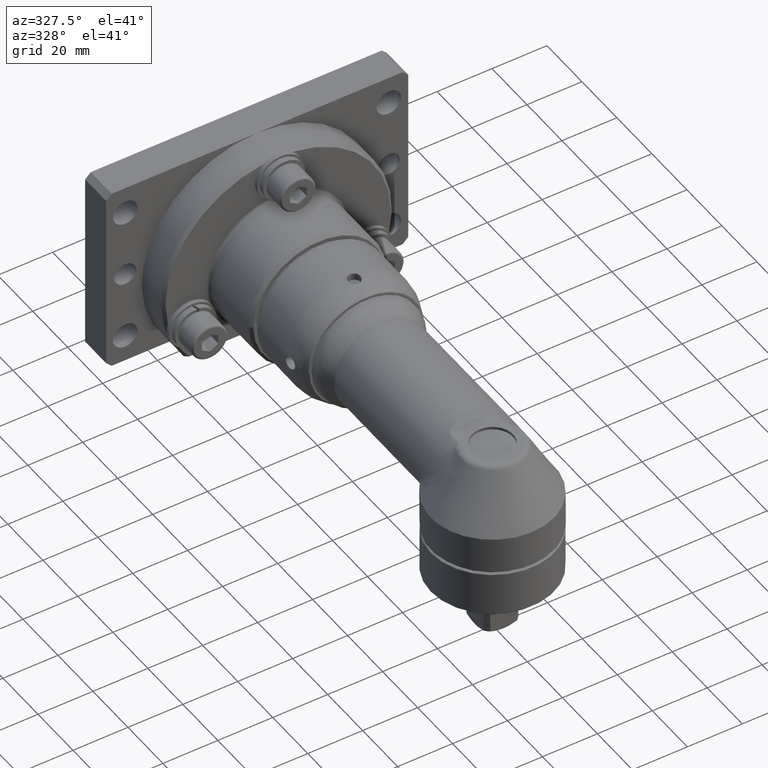
[diagram: clean part render]
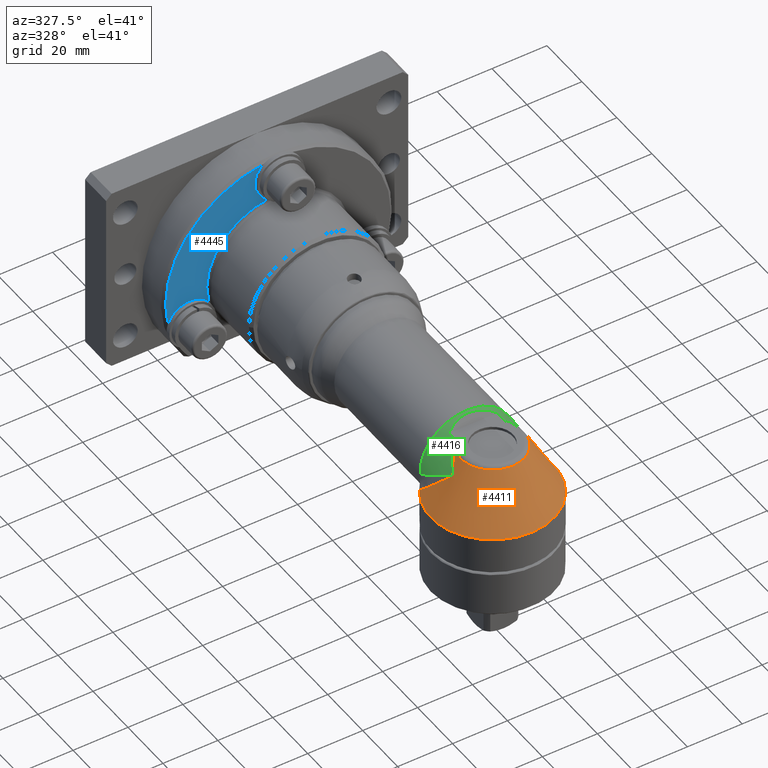
[diagram: same view with three faces highlighted in distinct colors, each labeled with its STEP entity id]
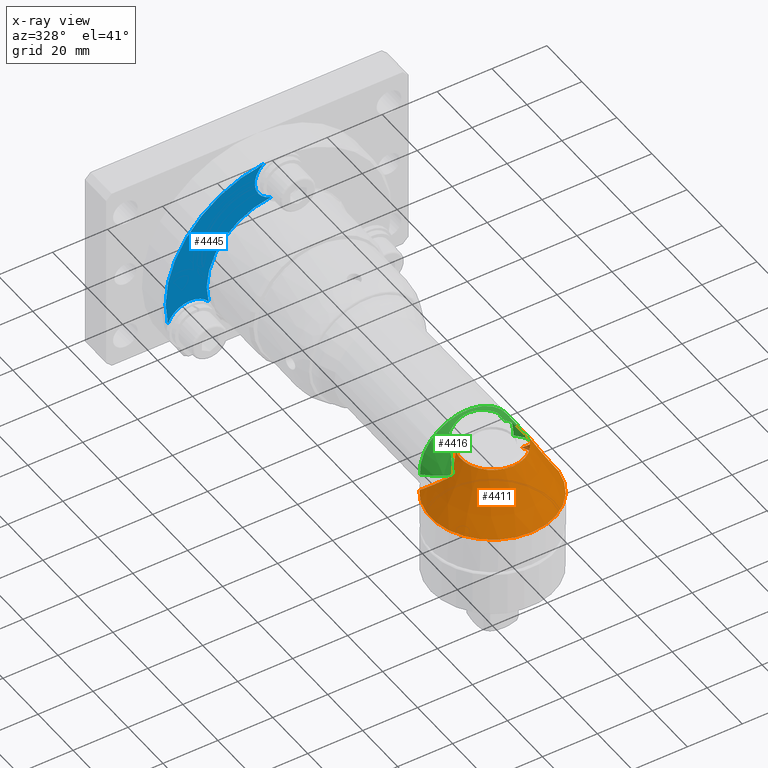
[diagram: x-ray of the same camera — body ghosted, the three highlighted faces saturated]
A machine part, auxiliary view with three faces highlighted in distinct colors.
The next image is the same camera in x-ray (body ghosted, the three faces saturated) — at least one of them is partly hidden behind the body in this view.
Their STEP definitions:

[orange] entity #4411 — the highlighted conical surface has half-angle 30 deg.
#116=B_SPLINE_CURVE_WITH_KNOTS('',3,(#7570,#7571,#7572,#7573),
 .UNSPECIFIED.,.F.,.F.,(4,4),(-0.115384933978931,-8.54182486261032E-13),
 .UNSPECIFIED.);
#117=B_SPLINE_CURVE_WITH_KNOTS('',3,(#7575,#7576,#7577,#7578),
 .UNSPECIFIED.,.F.,.F.,(4,4),(-3.12409619109483,-3.00871125784011),
 .UNSPECIFIED.);
#118=B_SPLINE_CURVE_WITH_KNOTS('',3,(#7579,#7580,#7581,#7582,#7583,#7584,
#7585,#7586,#7587,#7588,#7589,#7590,#7591,#7592,#7593,#7594,#7595),
 .UNSPECIFIED.,.F.,.F.,(4,1,1,1,1,1,1,1,1,1,1,1,1,1,4),(-2.8731504176591,
-2.66792538782631,-2.46270035799351,-2.25747532816072,-2.15486281324432,
-2.10355655578613,-2.05225029832793,-2.00094404086973,-1.94963778341153,
-1.84702526849513,-1.64180023866234,-1.23135017899676,-0.820900119331171,
-0.410450059665585,0.),.UNSPECIFIED.);
#119=B_SPLINE_CURVE_WITH_KNOTS('',3,(#7596,#7597,#7598,#7599,#7600,#7601,
#7602,#7603,#7604,#7605,#7606,#7607,#7608,#7609,#7610,#7611,#7612,#7613),
 .UNSPECIFIED.,.F.,.F.,(4,1,1,1,1,1,1,1,1,1,1,1,1,1,1,4),(-2.87314976603078,
-2.46269979945629,-2.05224983288179,-1.64179986630729,-1.2313498997328,
-1.02612491644555,-0.923512424801928,-0.872206178980116,-0.820899933158304,
-0.769593687336492,-0.71828744151468,-0.615674949871057,-0.564368704049245,
-0.513062458227433,-0.410449966583809,-9.31366520211277E-12),
 .UNSPECIFIED.);
#160=CONICAL_SURFACE('',#4770,16.75,0.523598775598299);
#795=FACE_OUTER_BOUND('',#1058,.T.);
#1058=EDGE_LOOP('',(#3162,#3163,#3164,#3165,#3166,#3167));
#1370=CIRCLE('',#4744,22.5);
#1384=CIRCLE('',#4769,11.5773502691896);
#1775=VERTEX_POINT('',#7334);
#1776=VERTEX_POINT('',#7345);
#1800=VERTEX_POINT('',#7540);
#1802=VERTEX_POINT('',#7548);
#1804=VERTEX_POINT('',#7569);
#1805=VERTEX_POINT('',#7574);
#2280=EDGE_CURVE('',#1776,#1775,#1370,.T.);
#2315=EDGE_CURVE('',#1800,#1802,#1384,.T.);
#2319=EDGE_CURVE('',#1776,#1804,#116,.T.);
#2320=EDGE_CURVE('',#1805,#1775,#117,.T.);
#2321=EDGE_CURVE('',#1802,#1805,#118,.T.);
#2322=EDGE_CURVE('',#1804,#1800,#119,.T.);
#3162=ORIENTED_EDGE('',*,*,#2319,.F.);
#3163=ORIENTED_EDGE('',*,*,#2280,.T.);
#3164=ORIENTED_EDGE('',*,*,#2320,.F.);
#3165=ORIENTED_EDGE('',*,*,#2321,.F.);
#3166=ORIENTED_EDGE('',*,*,#2315,.F.);
#3167=ORIENTED_EDGE('',*,*,#2322,.F.);
#4411=ADVANCED_FACE('',(#795),#160,.T.);
#4744=AXIS2_PLACEMENT_3D('',#7346,#5519,#5520);
#4769=AXIS2_PLACEMENT_3D('',#7549,#5578,#5579);
#4770=AXIS2_PLACEMENT_3D('',#7568,#5580,#5581);
#5519=DIRECTION('center_axis',(-2.51278438236415E-15,2.47358770109276E-30,
1.));
#5520=DIRECTION('ref_axis',(1.,-6.70462140602243E-16,2.51278438236415E-15));
#5578=DIRECTION('center_axis',(-2.58211195176569E-15,2.4561895603358E-30,
1.));
#5579=DIRECTION('ref_axis',(-3.37395233214696E-16,-1.,1.58499729618336E-30));
#5580=DIRECTION('center_axis',(2.51278438236415E-15,-2.47358770109276E-30,
-1.));
#5581=DIRECTION('ref_axis',(-2.07011132455914E-13,-1.,1.22464679914217E-16));
#7334=CARTESIAN_POINT('',(18.5813121479336,12.6879800938088,-5.41858428702895));
#7345=CARTESIAN_POINT('',(-18.5813121479307,12.6879800938191,-5.41858428704108));
#7346=CARTESIAN_POINT('Origin',(1.36157339710031E-14,-1.34033434497618E-29,
-5.41858428704207));
#7540=CARTESIAN_POINT('',(-10.9707652513866,3.69829001756431,13.5000000000686));
#7548=CARTESIAN_POINT('',(10.9707652514686,3.69829001736887,13.5000000000153));
#7549=CARTESIAN_POINT('Origin',(-3.33461533261041E-14,3.3006955560354E-29,
13.5));
#7568=CARTESIAN_POINT('Origin',(-1.14098197866385E-14,1.12318391080417E-29,
4.54070785647897));
#7569=CARTESIAN_POINT('',(-18.5674964772004,11.9305014562416,-4.67395509964043));
#7570=CARTESIAN_POINT('Ctrl Pts',(-18.5813122436066,12.687980733859,-5.41858363473499));
#7571=CARTESIAN_POINT('Ctrl Pts',(-18.5804312309489,12.4351546252485,-5.17038253345136));
#7572=CARTESIAN_POINT('Ctrl Pts',(-18.5758101821906,12.1826387072991,-4.92214580809359));
#7573=CARTESIAN_POINT('Ctrl Pts',(-18.5674964771758,11.9305014562555,-4.67395509961759));
#7574=CARTESIAN_POINT('',(18.5674964772005,11.9305014562415,-4.67395509964034));
#7575=CARTESIAN_POINT('Ctrl Pts',(18.5674964771759,11.9305014562554,-4.6739550996175));
#7576=CARTESIAN_POINT('Ctrl Pts',(18.5758101821385,12.1826387057184,-4.9221458065376));
#7577=CARTESIAN_POINT('Ctrl Pts',(18.5804312274632,12.4351546085357,-5.17038255148408));
#7578=CARTESIAN_POINT('Ctrl Pts',(18.5813122391549,12.6879807115766,-5.41858365742586));
#7579=CARTESIAN_POINT('Ctrl Pts',(10.9707652514496,3.69829001735004,13.5000000000493));
#7580=CARTESIAN_POINT('Ctrl Pts',(11.2914308359435,3.41811090370683,13.128711241278));
#7581=CARTESIAN_POINT('Ctrl Pts',(11.926250938439,2.82237504031619,12.3536112325936));
#7582=CARTESIAN_POINT('Ctrl Pts',(12.7815863032603,1.89750893392612,11.1956469392682));
#7583=CARTESIAN_POINT('Ctrl Pts',(13.4564848404127,1.0813928333146,10.185188073272));
#7584=CARTESIAN_POINT('Ctrl Pts',(13.9191606722085,0.473676113449466,9.432653616824));
#7585=CARTESIAN_POINT('Ctrl Pts',(14.1831803729024,0.162854865175761,8.98641790901122));
#7586=CARTESIAN_POINT('Ctrl Pts',(14.394129263659,-0.0760370798651298,8.62106157780882));
#7587=CARTESIAN_POINT('Ctrl Pts',(14.6637917616972,-0.0742684170117445,
8.15405937002691));
#7588=CARTESIAN_POINT('Ctrl Pts',(14.9445086729663,0.240206129596575,7.66759963040922));
#7589=CARTESIAN_POINT('Ctrl Pts',(15.3700517234555,0.837015947211493,6.90267333009701));
#7590=CARTESIAN_POINT('Ctrl Pts',(16.137694314767,2.1646127408732,5.40093289129336));
#7591=CARTESIAN_POINT('Ctrl Pts',(17.05240856284,4.1588769046288,3.22624109213719));
#7592=CARTESIAN_POINT('Ctrl Pts',(17.8506044106422,6.6454824372168,0.630408016258706));
#7593=CARTESIAN_POINT('Ctrl Pts',(18.3768856545149,9.22701235793805,-1.99675788651507));
#7594=CARTESIAN_POINT('Ctrl Pts',(18.5379227659574,11.033592768366,-3.79108514781807));
#7595=CARTESIAN_POINT('Ctrl Pts',(18.5674964772005,11.9305014562415,-4.67395509964033));
#7596=CARTESIAN_POINT('Ctrl Pts',(-18.5674964772005,11.9305014562416,-4.67395509964044));
#7597=CARTESIAN_POINT('Ctrl Pts',(-18.5379227726648,11.0335929717871,-3.79108534805527));
#7598=CARTESIAN_POINT('Ctrl Pts',(-18.3768861997109,9.22701875557001,-1.99675929027534));
#7599=CARTESIAN_POINT('Ctrl Pts',(-17.8506033273756,6.64548261387375,0.630410843603359));
#7600=CARTESIAN_POINT('Ctrl Pts',(-17.0524076835978,4.15887687906328,3.22624915580338));
#7601=CARTESIAN_POINT('Ctrl Pts',(-16.1376893337,2.16449981033312,5.40093539891972));
#7602=CARTESIAN_POINT('Ctrl Pts',(-15.3700378226715,0.836923865870236,6.90268994573177));
#7603=CARTESIAN_POINT('Ctrl Pts',(-14.944485706646,0.239970615184851,7.66762387145125));
#7604=CARTESIAN_POINT('Ctrl Pts',(-14.6637715613757,-0.0744650876481361,
8.15407932614946));
#7605=CARTESIAN_POINT('Ctrl Pts',(-14.3940928464549,-0.0764265140945156,
8.621101273422));
#7606=CARTESIAN_POINT('Ctrl Pts',(-14.1831702212355,0.16278253692162,8.98642233890692));
#7607=CARTESIAN_POINT('Ctrl Pts',(-13.9190518629328,0.472450092648189,9.4327834796517));
#7608=CARTESIAN_POINT('Ctrl Pts',(-13.6549445323911,0.822835180525051,9.86243037692808));
#7609=CARTESIAN_POINT('Ctrl Pts',(-13.3875126591745,1.15638205480958,10.2798508604894));
#7610=CARTESIAN_POINT('Ctrl Pts',(-13.1176677149928,1.48914483036276,10.6898761071216));
#7611=CARTESIAN_POINT('Ctrl Pts',(-12.3702916158766,2.37109979565741,11.7818549883917));
#7612=CARTESIAN_POINT('Ctrl Pts',(-11.6120962748407,3.13793191729018,12.7574226511005));
#7613=CARTESIAN_POINT('Ctrl Pts',(-10.9707652513011,3.69829001747984,13.5000000002213));

[blue] entity #4445 — the highlighted planar face has unit normal (0, -1, 0).
#829=FACE_OUTER_BOUND('',#1100,.T.);
#1100=EDGE_LOOP('',(#3346,#3347,#3348,#3349));
#1429=CIRCLE('',#4834,41.);
#1450=CIRCLE('',#4860,8.5);
#1451=CIRCLE('',#4861,26.);
#1452=CIRCLE('',#4862,8.5);
#1853=VERTEX_POINT('',#8231);
#1854=VERTEX_POINT('',#8233);
#1875=VERTEX_POINT('',#8286);
#1876=VERTEX_POINT('',#8288);
#2391=EDGE_CURVE('',#1853,#1854,#1429,.T.);
#2416=EDGE_CURVE('',#1853,#1875,#1450,.T.);
#2417=EDGE_CURVE('',#1876,#1875,#1451,.T.);
#2418=EDGE_CURVE('',#1876,#1854,#1452,.T.);
#3346=ORIENTED_EDGE('',*,*,#2416,.T.);
#3347=ORIENTED_EDGE('',*,*,#2417,.F.);
#3348=ORIENTED_EDGE('',*,*,#2418,.T.);
#3349=ORIENTED_EDGE('',*,*,#2391,.F.);
#4263=PLANE('',#4859);
#4445=ADVANCED_FACE('',(#829),#4263,.T.);
#4834=AXIS2_PLACEMENT_3D('',#8234,#5720,#5721);
#4859=AXIS2_PLACEMENT_3D('',#8285,#5773,#5774);
#4860=AXIS2_PLACEMENT_3D('',#8287,#5775,#5776);
#4861=AXIS2_PLACEMENT_3D('',#8289,#5777,#5778);
#4862=AXIS2_PLACEMENT_3D('',#8290,#5779,#5780);
#5720=DIRECTION('center_axis',(-3.53651794369473E-16,1.,-1.06971554646458E-15));
#5721=DIRECTION('ref_axis',(1.,3.53651794369473E-16,1.73472347597681E-16));
#5773=DIRECTION('center_axis',(3.53651794369473E-16,-1.,1.06971554646458E-15));
#5774=DIRECTION('ref_axis',(-1.73472347597682E-16,1.06971554646458E-15,
1.));
#5775=DIRECTION('center_axis',(-3.53651794369473E-16,1.,-1.06971554646458E-15));
#5776=DIRECTION('ref_axis',(-2.07804109807465E-14,1.06667977736523E-15,
1.));
#5777=DIRECTION('center_axis',(3.53651794369473E-16,-1.,1.06971554646458E-15));
#5778=DIRECTION('ref_axis',(1.,3.53651794369473E-16,3.57169367469784E-16));
#5779=DIRECTION('center_axis',(-3.53651794369473E-16,1.,-1.06971554646458E-15));
#5780=DIRECTION('ref_axis',(2.07804109807464E-14,-1.06971554646457E-15,
-1.));
#8231=CARTESIAN_POINT('',(-40.1632553128279,122.499999999999,-8.24092972161544));
#8233=CARTESIAN_POINT('',(-5.28392477719331,122.5,40.6580882352939));
#8234=CARTESIAN_POINT('Origin',(-1.18730715314013E-14,122.5,-1.99348829019894E-13));
#8285=CARTESIAN_POINT('Origin',(-42.,122.499999999999,-2.06634667618997E-13));
#8286=CARTESIAN_POINT('',(-25.2855564325938,122.5,-6.05315090627327));
#8287=CARTESIAN_POINT('Origin',(-32.1476315703767,122.499999999999,-11.0693172515435));
#8288=CARTESIAN_POINT('',(-2.50880531939476,122.5,25.878676470588));
#8289=CARTESIAN_POINT('Origin',(-1.18730715314013E-14,122.5,-1.99348829019894E-13));
#8290=CARTESIAN_POINT('Origin',(-3.57231591273478E-15,122.5,33.9999999999998));

[green] entity #4416 — the highlighted face is a freeform B-spline surface patch.
#70=(
BOUNDED_SURFACE()
B_SPLINE_SURFACE(2,2,((#7808,#7809,#7810,#7811,#7812,#7813,#7814),(#7815,
#7816,#7817,#7818,#7819,#7820,#7821),(#7822,#7823,#7824,#7825,#7826,#7827,
#7828)),.UNSPECIFIED.,.F.,.F.,.F.)
B_SPLINE_SURFACE_WITH_KNOTS((3,3),(3,2,2,3),(-0.0301856447820385,4.03239327396903E-16),
(-1.6436413904243,-0.547880463474768,0.547880463474768,1.6436413904243),
 .UNSPECIFIED.)
GEOMETRIC_REPRESENTATION_ITEM()
RATIONAL_B_SPLINE_SURFACE(((1.,0.853630460948184,1.,0.853630460948184,1.,
0.853630460948184,1.),(0.999886105518194,0.853533237149181,0.999886105518194,
0.853533237149181,0.999886105518194,0.853533237149181,0.999886105518194),
(1.,0.853630460948184,1.,0.853630460948184,1.,0.853630460948184,1.)))
REPRESENTATION_ITEM('')
SURFACE()
);
#104=B_SPLINE_CURVE_WITH_KNOTS('',3,(#7453,#7454,#7455,#7456),
 .UNSPECIFIED.,.F.,.F.,(4,4),(26.2438659960781,26.6677838204558),
 .UNSPECIFIED.);
#105=B_SPLINE_CURVE_WITH_KNOTS('',3,(#7462,#7463,#7464,#7465,#7466,#7467,
#7468,#7469,#7470,#7471),.UNSPECIFIED.,.F.,.F.,(4,2,2,2,4),(5.94258334001894,
6.22486772211859,6.50715210421824,6.846684875358,6.84993506949668),
 .UNSPECIFIED.);
#106=B_SPLINE_CURVE_WITH_KNOTS('',3,(#7473,#7474,#7475,#7476,#7477,#7478,
#7479,#7480,#7481,#7482),.UNSPECIFIED.,.F.,.F.,(4,2,2,2,4),(5.0352316105412,
5.03848180467988,5.37801457581964,5.66029895791929,5.94258334001894),
 .UNSPECIFIED.);
#107=B_SPLINE_CURVE_WITH_KNOTS('',3,(#7488,#7489,#7490,#7491),
 .UNSPECIFIED.,.F.,.F.,(4,4),(7.83952599792889,8.2634438223065),
 .UNSPECIFIED.);
#110=B_SPLINE_CURVE_WITH_KNOTS('',3,(#7531,#7532,#7533,#7534),
 .UNSPECIFIED.,.F.,.F.,(4,4),(15.2059537950902,15.2215442490546),
 .UNSPECIFIED.);
#111=B_SPLINE_CURVE_WITH_KNOTS('',3,(#7535,#7536,#7537,#7538),
 .UNSPECIFIED.,.F.,.F.,(4,4),(4.01960584809183,4.03519629616441),
 .UNSPECIFIED.);
#123=B_SPLINE_CURVE_WITH_KNOTS('',3,(#7766,#7767,#7768,#7769,#7770,#7771,
#7772,#7773,#7774,#7775,#7776,#7777,#7778,#7779,#7780,#7781,#7782),
 .UNSPECIFIED.,.F.,.F.,(4,1,1,1,1,1,1,1,1,1,1,1,1,1,4),(0.,0.410450059665585,
0.820900119331171,1.23135017899676,1.64180023866234,1.84702526849513,1.94963778341153,
2.00094404086973,2.05225029832793,2.10355655578613,2.15486281324432,2.25747532816072,
2.46270035799351,2.66792538782631,2.8731504176591),.UNSPECIFIED.);
#124=B_SPLINE_CURVE_WITH_KNOTS('',3,(#7803,#7804,#7805,#7806,#7807),
 .UNSPECIFIED.,.F.,.F.,(4,1,4),(-4.06402842165519,-3.74740147048998,-3.50993125711607),
 .UNSPECIFIED.);
#125=B_SPLINE_CURVE_WITH_KNOTS('',3,(#7831,#7832,#7833,#7834,#7835,#7836,
#7837,#7838,#7839,#7840,#7841,#7842,#7843,#7844,#7845,#7846,#7847,#7848),
 .UNSPECIFIED.,.F.,.F.,(4,1,1,1,1,1,1,1,1,1,1,1,1,1,1,4),(9.31366520211277E-12,
0.410449966583809,0.513062458227433,0.564368704049245,0.615674949871057,
0.71828744151468,0.769593687336492,0.820899933158304,0.872206178980116,
0.923512424801928,1.02612491644555,1.2313498997328,1.64179986630729,2.05224983288179,
2.46269979945629,2.87314976603078),.UNSPECIFIED.);
#126=B_SPLINE_CURVE_WITH_KNOTS('',3,(#7849,#7850,#7851,#7852,#7853,#7854,
#7855,#7856,#7857,#7858),.UNSPECIFIED.,.F.,.F.,(4,3,3,4),(3.51003172408279,
3.66834430167131,3.82665687925984,4.06412574564195),.UNSPECIFIED.);
#800=FACE_OUTER_BOUND('',#1063,.T.);
#1063=EDGE_LOOP('',(#3185,#3186,#3187,#3188,#3189,#3190,#3191,#3192,#3193,
#3194,#3195,#3196));
#1388=CIRCLE('',#4774,17.);
#1389=CIRCLE('',#4775,17.);
#1783=VERTEX_POINT('',#7451);
#1784=VERTEX_POINT('',#7452);
#1786=VERTEX_POINT('',#7461);
#1787=VERTEX_POINT('',#7472);
#1789=VERTEX_POINT('',#7487);
#1797=VERTEX_POINT('',#7513);
#1799=VERTEX_POINT('',#7523);
#1808=VERTEX_POINT('',#7690);
#1809=VERTEX_POINT('',#7764);
#1810=VERTEX_POINT('',#7829);
#1811=VERTEX_POINT('',#7830);
#1812=VERTEX_POINT('',#7859);
#2291=EDGE_CURVE('',#1783,#1784,#104,.T.);
#2294=EDGE_CURVE('',#1786,#1783,#105,.T.);
#2295=EDGE_CURVE('',#1787,#1786,#106,.T.);
#2298=EDGE_CURVE('',#1789,#1787,#107,.T.);
#2312=EDGE_CURVE('',#1784,#1799,#110,.T.);
#2313=EDGE_CURVE('',#1797,#1789,#111,.T.);
#2329=EDGE_CURVE('',#1808,#1809,#123,.T.);
#2330=EDGE_CURVE('',#1809,#1799,#124,.T.);
#2331=EDGE_CURVE('',#1810,#1811,#125,.T.);
#2332=EDGE_CURVE('',#1797,#1810,#126,.T.);
#2333=EDGE_CURVE('',#1812,#1808,#1388,.T.);
#2334=EDGE_CURVE('',#1811,#1812,#1389,.T.);
#3185=ORIENTED_EDGE('',*,*,#2331,.F.);
#3186=ORIENTED_EDGE('',*,*,#2332,.F.);
#3187=ORIENTED_EDGE('',*,*,#2313,.T.);
#3188=ORIENTED_EDGE('',*,*,#2298,.T.);
#3189=ORIENTED_EDGE('',*,*,#2295,.T.);
#3190=ORIENTED_EDGE('',*,*,#2294,.T.);
#3191=ORIENTED_EDGE('',*,*,#2291,.T.);
#3192=ORIENTED_EDGE('',*,*,#2312,.T.);
#3193=ORIENTED_EDGE('',*,*,#2330,.F.);
#3194=ORIENTED_EDGE('',*,*,#2329,.F.);
#3195=ORIENTED_EDGE('',*,*,#2333,.F.);
#3196=ORIENTED_EDGE('',*,*,#2334,.F.);
#4416=ADVANCED_FACE('',(#800),#70,.F.);
#4774=AXIS2_PLACEMENT_3D('',#7860,#5588,#5589);
#4775=AXIS2_PLACEMENT_3D('',#7861,#5590,#5591);
#5588=DIRECTION('center_axis',(5.47997460687507E-16,1.,-1.08159064247537E-30));
#5589=DIRECTION('ref_axis',(1.,-5.47997460687507E-16,2.39031970244941E-15));
#5590=DIRECTION('center_axis',(5.47997460687507E-16,1.,-1.08159064247537E-30));
#5591=DIRECTION('ref_axis',(1.,-5.47997460687507E-16,2.39031970244941E-15));
#7451=CARTESIAN_POINT('',(8.74508233864194,11.0619480597387,14.5619480597388));
#7452=CARTESIAN_POINT('',(8.74508233864194,6.67259581350258,14.5));
#7453=CARTESIAN_POINT('Ctrl Pts',(8.74508233864194,11.0619480597387,14.5619480597387));
#7454=CARTESIAN_POINT('Ctrl Pts',(8.74508233864194,9.61574515074522,14.5491737129971));
#7455=CARTESIAN_POINT('Ctrl Pts',(8.74508233864194,8.15155590332219,14.5286919456596));
#7456=CARTESIAN_POINT('Ctrl Pts',(8.74508233864194,6.67259581350258,14.5));
#7461=CARTESIAN_POINT('',(-3.15814691084735E-14,13.4984144413487,16.9984144413487));
#7462=CARTESIAN_POINT('Ctrl Pts',(-3.5527136788005E-14,13.4984144413781,
16.9984144413781));
#7463=CARTESIAN_POINT('Ctrl Pts',(0.940947940332133,13.4984144413781,16.9984144413781));
#7464=CARTESIAN_POINT('Ctrl Pts',(1.9636545395789,13.4144106346075,16.9144106346075));
#7465=CARTESIAN_POINT('Ctrl Pts',(3.94635718658092,13.0632910318883,16.5632910318883));
#7466=CARTESIAN_POINT('Ctrl Pts',(4.90662201174488,12.7969345384766,16.2969345384767));
#7467=CARTESIAN_POINT('Ctrl Pts',(6.75274282387943,12.1305930040386,15.6305930040387));
#7468=CARTESIAN_POINT('Ctrl Pts',(7.78113883176575,11.6435579113115,15.1435579113116));
#7469=CARTESIAN_POINT('Ctrl Pts',(8.72716594021639,11.0727920229964,14.5727920229964));
#7470=CARTESIAN_POINT('Ctrl Pts',(8.73612810488314,11.0673733881191,14.5673733881192));
#7471=CARTESIAN_POINT('Ctrl Pts',(8.74508233864194,11.0619480597387,14.5619480597388));
#7472=CARTESIAN_POINT('',(-8.74508233864199,11.0619480597387,14.5619480597387));
#7473=CARTESIAN_POINT('Ctrl Pts',(-8.74508233864194,11.0619480597387,14.5619480597387));
#7474=CARTESIAN_POINT('Ctrl Pts',(-8.73612810488314,11.0673733881191,14.5673733881191));
#7475=CARTESIAN_POINT('Ctrl Pts',(-8.72716594021637,11.0727920229963,14.5727920229963));
#7476=CARTESIAN_POINT('Ctrl Pts',(-7.78113883176573,11.6435579113115,15.1435579113115));
#7477=CARTESIAN_POINT('Ctrl Pts',(-6.7527428238795,12.1305930040387,15.6305930040386));
#7478=CARTESIAN_POINT('Ctrl Pts',(-4.90662201174496,12.7969345384767,16.2969345384766));
#7479=CARTESIAN_POINT('Ctrl Pts',(-3.94635718658101,13.0632910318884,16.5632910318884));
#7480=CARTESIAN_POINT('Ctrl Pts',(-1.963654539579,13.4144106346076,16.9144106346076));
#7481=CARTESIAN_POINT('Ctrl Pts',(-0.940947940332204,13.4984144413781,16.9984144413781));
#7482=CARTESIAN_POINT('Ctrl Pts',(-3.5527136788005E-14,13.4984144413781,
16.9984144413781));
#7487=CARTESIAN_POINT('',(-8.74508233864201,6.67259581350259,14.5));
#7488=CARTESIAN_POINT('Ctrl Pts',(-8.745082338642,6.67259581350259,14.5));
#7489=CARTESIAN_POINT('Ctrl Pts',(-8.745082338642,8.15155739357901,14.5286919745707));
#7490=CARTESIAN_POINT('Ctrl Pts',(-8.745082338642,9.61574071651142,14.5491736738294));
#7491=CARTESIAN_POINT('Ctrl Pts',(-8.745082338642,11.0619480597387,14.5619480597387));
#7513=CARTESIAN_POINT('',(-8.73964140156198,6.50522355046058,14.5));
#7523=CARTESIAN_POINT('',(8.73964140156191,6.50522355046043,14.5));
#7531=CARTESIAN_POINT('Ctrl Pts',(8.74508233864194,6.67259581350258,14.5));
#7532=CARTESIAN_POINT('Ctrl Pts',(8.7432885286659,6.61682990387983,14.5));
#7533=CARTESIAN_POINT('Ctrl Pts',(8.74147490289039,6.56103896966646,14.5));
#7534=CARTESIAN_POINT('Ctrl Pts',(8.73964140156206,6.50522355046043,14.5));
#7535=CARTESIAN_POINT('Ctrl Pts',(-8.73964140156189,6.50522355046058,14.5));
#7536=CARTESIAN_POINT('Ctrl Pts',(-8.7414749029238,6.561038970689,14.5));
#7537=CARTESIAN_POINT('Ctrl Pts',(-8.74328852870741,6.61682990517372,14.5));
#7538=CARTESIAN_POINT('Ctrl Pts',(-8.74508233864182,6.6725958135026,14.5));
#7690=CARTESIAN_POINT('',(16.9549155136832,14.7394029729817,-1.23727116060428));
#7764=CARTESIAN_POINT('',(11.7327921266307,5.47264520619942,12.1796219547378));
#7766=CARTESIAN_POINT('Ctrl Pts',(16.9549155136832,14.7394029729797,-1.23727116060427));
#7767=CARTESIAN_POINT('Ctrl Pts',(17.0025352604379,13.7089319867943,-0.584715109257087));
#7768=CARTESIAN_POINT('Ctrl Pts',(17.015331949073,11.613980253169,0.741646934423996));
#7769=CARTESIAN_POINT('Ctrl Pts',(16.7877219151044,8.55292080037765,2.68227440487976));
#7770=CARTESIAN_POINT('Ctrl Pts',(16.3204925979569,5.52452105121068,4.59678610484937));
#7771=CARTESIAN_POINT('Ctrl Pts',(15.7072191062893,3.01425668426977,6.19689596995285));
#7772=CARTESIAN_POINT('Ctrl Pts',(15.1547162379161,1.28911564142604,7.29916030035229));
#7773=CARTESIAN_POINT('Ctrl Pts',(14.8400778614838,0.500586556006454,7.86018792670681));
#7774=CARTESIAN_POINT('Ctrl Pts',(14.6305043416196,0.0808088710785483,8.2170357089909));
#7775=CARTESIAN_POINT('Ctrl Pts',(14.4318229884153,0.0773699064574589,8.56103705904582));
#7776=CARTESIAN_POINT('Ctrl Pts',(14.2785109147397,0.399221280451889,8.83147541711233));
#7777=CARTESIAN_POINT('Ctrl Pts',(14.0848759388236,0.821433218815549,9.1619535392981));
#7778=CARTESIAN_POINT('Ctrl Pts',(13.7409733175891,1.65512174029421,9.71988748234103));
#7779=CARTESIAN_POINT('Ctrl Pts',(13.2223733074165,2.80166830101499,10.4694445648085));
#7780=CARTESIAN_POINT('Ctrl Pts',(12.5375173415342,4.14323227400301,11.3287763951449));
#7781=CARTESIAN_POINT('Ctrl Pts',(12.0069898748336,5.04131114017955,11.9040535863813));
#7782=CARTESIAN_POINT('Ctrl Pts',(11.732792126639,5.47264520618631,12.1796219547294));
#7803=CARTESIAN_POINT('Ctrl Pts',(11.7327921266313,5.47264520619842,12.1796219547371));
#7804=CARTESIAN_POINT('Ctrl Pts',(11.3097521246439,6.13811954118682,12.6047765880663));
#7805=CARTESIAN_POINT('Ctrl Pts',(10.372855998078,6.99848881429207,13.4458470826697));
#7806=CARTESIAN_POINT('Ctrl Pts',(9.18677388513542,6.86639747313529,14.2376491361023));
#7807=CARTESIAN_POINT('Ctrl Pts',(8.73964140156176,6.50522355046078,14.5000000000002));
#7808=CARTESIAN_POINT('Ctrl Pts',(-16.7342631479206,0.0819523473333675,
-1.221169233794));
#7809=CARTESIAN_POINT('Ctrl Pts',(-17.4794117335838,0.081952347333368,8.98995644126736));
#7810=CARTESIAN_POINT('Ctrl Pts',(-8.73970586679192,0.0819523473333632,
14.3228614027847));
#7811=CARTESIAN_POINT('Ctrl Pts',(-5.25066813740997E-14,0.0819523473333585,
19.6557663643021));
#7812=CARTESIAN_POINT('Ctrl Pts',(8.73970586679185,0.0819523473333537,14.3228614027848));
#7813=CARTESIAN_POINT('Ctrl Pts',(17.4794117335837,0.0819523473333488,8.98995644126744));
#7814=CARTESIAN_POINT('Ctrl Pts',(16.7342631479206,0.0819523473333491,-1.22116923379391));
#7815=CARTESIAN_POINT('Ctrl Pts',(-16.9549155136833,7.40900797216794,-1.23727116060436));
#7816=CARTESIAN_POINT('Ctrl Pts',(-17.7098893779869,7.40900797216795,9.10849498337911));
#7817=CARTESIAN_POINT('Ctrl Pts',(-8.85494468899348,7.40900797216794,14.5117178361442));
#7818=CARTESIAN_POINT('Ctrl Pts',(-4.91844011027186E-14,7.40900797216793,
19.9149406889093));
#7819=CARTESIAN_POINT('Ctrl Pts',(8.85494468899342,7.40900797216793,14.5117178361443));
#7820=CARTESIAN_POINT('Ctrl Pts',(17.7098893779869,7.40900797216792,9.1084949833792));
#7821=CARTESIAN_POINT('Ctrl Pts',(16.9549155136833,7.40900797216793,-1.23727116060428));
#7822=CARTESIAN_POINT('Ctrl Pts',(-16.9549155136832,14.7394029729836,-1.23727116060436));
#7823=CARTESIAN_POINT('Ctrl Pts',(-17.7098893779869,14.7394029729836,9.10849498337911));
#7824=CARTESIAN_POINT('Ctrl Pts',(-8.85494468899348,14.7394029729836,14.5117178361442));
#7825=CARTESIAN_POINT('Ctrl Pts',(-4.51673632564352E-14,14.7394029729836,
19.9149406889093));
#7826=CARTESIAN_POINT('Ctrl Pts',(8.85494468899342,14.7394029729836,14.5117178361443));
#7827=CARTESIAN_POINT('Ctrl Pts',(17.7098893779869,14.7394029729836,9.1084949833792));
#7828=CARTESIAN_POINT('Ctrl Pts',(16.9549155136833,14.7394029729836,-1.23727116060428));
#7829=CARTESIAN_POINT('',(-11.7327921264747,5.47264520644485,12.1796219548945));
#7830=CARTESIAN_POINT('',(-16.9549155136832,14.7394029729817,-1.23727116060436));
#7831=CARTESIAN_POINT('Ctrl Pts',(-11.732792126512,5.47264520638616,12.179621954857));
#7832=CARTESIAN_POINT('Ctrl Pts',(-12.2811874985337,4.60997727003167,11.6284853431625));
#7833=CARTESIAN_POINT('Ctrl Pts',(-12.8996550475187,3.47700020851669,10.9043923722687));
#7834=CARTESIAN_POINT('Ctrl Pts',(-13.4800491218286,2.2288419138071,10.0942741904661));
#7835=CARTESIAN_POINT('Ctrl Pts',(-13.6862893666871,1.76343987988609,9.79014281009325));
#7836=CARTESIAN_POINT('Ctrl Pts',(-13.8885046647272,1.30036988150593,9.48060354721506));
#7837=CARTESIAN_POINT('Ctrl Pts',(-14.0847768859342,0.819793946013524,9.16204305581889));
#7838=CARTESIAN_POINT('Ctrl Pts',(-14.2784998421707,0.399127798176072,8.8314783401382));
#7839=CARTESIAN_POINT('Ctrl Pts',(-14.4317889399886,0.0768508091793582,
8.56106436049752));
#7840=CARTESIAN_POINT('Ctrl Pts',(-14.6304849919859,0.080547801744296,8.21704943817281));
#7841=CARTESIAN_POINT('Ctrl Pts',(-14.8400562181292,0.500273058876023,7.86020461431812));
#7842=CARTESIAN_POINT('Ctrl Pts',(-15.1547038283406,1.28899361943655,7.29917209030286));
#7843=CARTESIAN_POINT('Ctrl Pts',(-15.7072133105998,3.01410603138198,6.19689726122164));
#7844=CARTESIAN_POINT('Ctrl Pts',(-16.3204927342366,5.52452246016906,4.59679208637023));
#7845=CARTESIAN_POINT('Ctrl Pts',(-16.7877211172228,8.55292096444693,2.68227645900836));
#7846=CARTESIAN_POINT('Ctrl Pts',(-17.0153322377379,11.613988531111,0.741645913383694));
#7847=CARTESIAN_POINT('Ctrl Pts',(-17.0025352496377,13.7089322205077,-0.584715257258509));
#7848=CARTESIAN_POINT('Ctrl Pts',(-16.9549155136832,14.7394029729797,-1.23727116060436));
#7849=CARTESIAN_POINT('Ctrl Pts',(-8.739641401562,6.50522355046055,14.5));
#7850=CARTESIAN_POINT('Ctrl Pts',(-9.03771459335587,6.74599394375396,14.3251083018014));
#7851=CARTESIAN_POINT('Ctrl Pts',(-9.36787245555165,6.85252113877243,14.1142345327903));
#7852=CARTESIAN_POINT('Ctrl Pts',(-9.68785028529539,6.8591974616027,13.8913459039346));
#7853=CARTESIAN_POINT('Ctrl Pts',(-10.0078281150391,6.86587378443297,13.6684572750789));
#7854=CARTESIAN_POINT('Ctrl Pts',(-10.3176259123309,6.77269923507503,13.4335537863788));
#7855=CARTESIAN_POINT('Ctrl Pts',(-10.6048152013285,6.61100421994921,13.1993777040196));
#7856=CARTESIAN_POINT('Ctrl Pts',(-11.0355991348238,6.36846169726117,12.848113580482));
#7857=CARTESIAN_POINT('Ctrl Pts',(-11.4155139246577,5.9717481265963,12.4984861212116));
#7858=CARTESIAN_POINT('Ctrl Pts',(-11.7327921264747,5.4726452064449,12.1796219548945));
#7859=CARTESIAN_POINT('',(17.,14.7394029729836,3.85535353830895E-14));
#7860=CARTESIAN_POINT('Origin',(8.07715540124494E-15,14.7394029729837,-1.59420003312527E-29));
#7861=CARTESIAN_POINT('Origin',(8.07715540124494E-15,14.7394029729837,-1.59420003312527E-29));